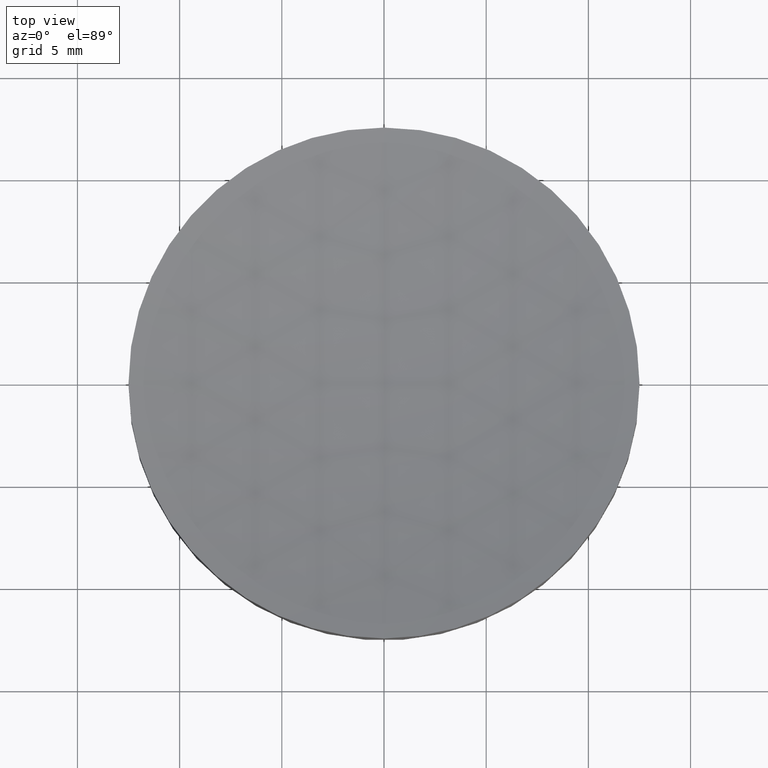
[diagram: clean part render]
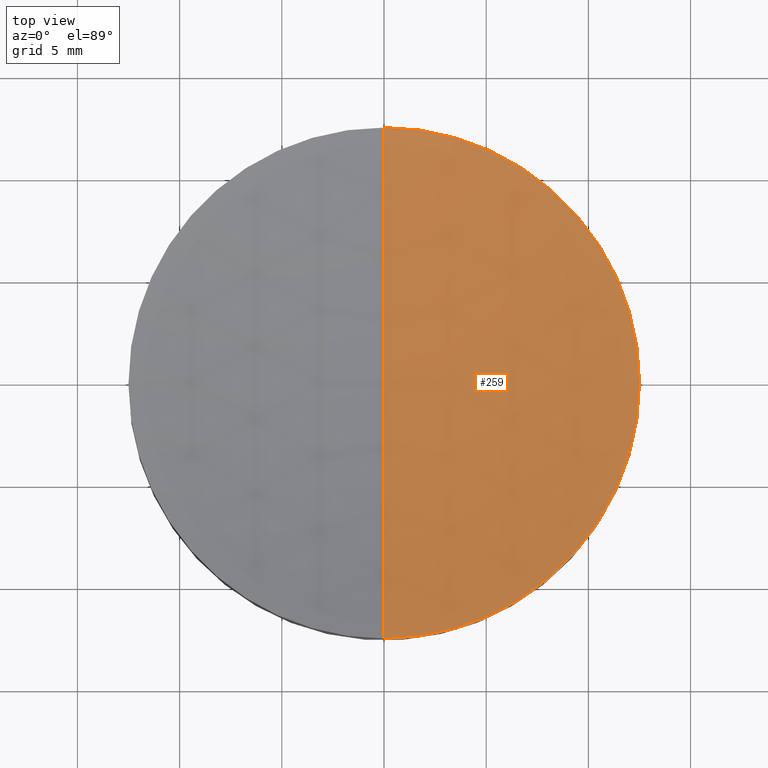
[diagram: same view with one face highlighted and labeled with its STEP entity id]
A machine part, top view. The second image highlights one B-rep face of the part: STEP entity #259.
In plain terms, the highlighted spherical surface has radius 51.5 mm.
Its self-contained STEP definition (entity closure, byte-faithful):
#1 = AXIS2_PLACEMENT_3D ( 'NONE', #5, #7, #8 ) ;
#4 = CIRCLE ( 'NONE', #1, 51.50000000000000700 ) ;
#5 = CARTESIAN_POINT ( 'NONE',  ( 0.0000000000000000000, 0.0000000000000000000, 52.72999199359360000 ) ) ;
#7 = DIRECTION ( 'NONE',  ( 1.000000000000000000, 0.0000000000000000000, 0.0000000000000000000 ) ) ;
#8 = DIRECTION ( 'NONE',  ( 0.0000000000000000000, 0.0000000000000000000, -1.000000000000000000 ) ) ;
#11 = CARTESIAN_POINT ( 'NONE',  ( 0.0000000000000000000, 3.153361361092621800E-015, 1.229991993593595900 ) ) ;
#12 = CARTESIAN_POINT ( 'NONE',  ( -1.530757942277970800E-015, -12.49999999999999300, 2.770008006406407200 ) ) ;
#13 = DIRECTION ( 'NONE',  ( -1.000000000000000000, 1.224606353822377300E-016, 0.0000000000000000000 ) ) ;
#15 = DIRECTION ( 'NONE',  ( -1.224606353822377300E-016, -1.000000000000000000, 0.0000000000000000000 ) ) ;
#37 = CARTESIAN_POINT ( 'NONE',  ( 0.0000000000000000000, 0.0000000000000000000, 52.72999199359360000 ) ) ;
#38 = AXIS2_PLACEMENT_3D ( 'NONE', #37, #13, #15 ) ;
#39 = CIRCLE ( 'NONE', #38, 51.50000000000000700 ) ;
#114 = FACE_OUTER_BOUND ( 'NONE', #219, .T. ) ;
#126 = DIRECTION ( 'NONE',  ( 0.0000000000000000000, 1.000000000000000000, 0.0000000000000000000 ) ) ;
#130 = AXIS2_PLACEMENT_3D ( 'NONE', #131, #138, #126 ) ;
#131 = CARTESIAN_POINT ( 'NONE',  ( 0.0000000000000000000, 0.0000000000000000000, 52.72999199359360000 ) ) ;
#135 = SPHERICAL_SURFACE ( 'NONE', #130, 51.50000000000000700 ) ;
#138 = DIRECTION ( 'NONE',  ( -1.000000000000000000, 0.0000000000000000000, 0.0000000000000000000 ) ) ;
#140 = CARTESIAN_POINT ( 'NONE',  ( 12.50000000000000000, 0.0000000000000000000, 2.770008006406406800 ) ) ;
#163 = DIRECTION ( 'NONE',  ( 1.000000000000000000, 0.0000000000000000000, 0.0000000000000000000 ) ) ;
#164 = DIRECTION ( 'NONE',  ( -0.0000000000000000000, -0.0000000000000000000, 1.000000000000000000 ) ) ;
#165 = AXIS2_PLACEMENT_3D ( 'NONE', #176, #164, #163 ) ;
#166 = CIRCLE ( 'NONE', #165, 12.50000000000000000 ) ;
#176 = CARTESIAN_POINT ( 'NONE',  ( 0.0000000000000000000, 0.0000000000000000000, 2.770008006406406800 ) ) ;
#187 = DIRECTION ( 'NONE',  ( 1.000000000000000000, 0.0000000000000000000, 0.0000000000000000000 ) ) ;
#188 = DIRECTION ( 'NONE',  ( -0.0000000000000000000, -0.0000000000000000000, 1.000000000000000000 ) ) ;
#189 = CARTESIAN_POINT ( 'NONE',  ( 0.0000000000000000000, 0.0000000000000000000, 2.770008006406406800 ) ) ;
#190 = AXIS2_PLACEMENT_3D ( 'NONE', #189, #188, #187 ) ;
#191 = CIRCLE ( 'NONE', #190, 12.50000000000000000 ) ;
#202 = CARTESIAN_POINT ( 'NONE',  ( 0.0000000000000000000, 12.49999999999999300, 2.770008006406407200 ) ) ;
#216 = VERTEX_POINT ( 'NONE', #12 ) ;
#217 = VERTEX_POINT ( 'NONE', #11 ) ;
#218 = ORIENTED_EDGE ( 'NONE', *, *, #220, .F. ) ;
#219 = EDGE_LOOP ( 'NONE', ( #218, #258, #248, #244 ) ) ;
#220 = EDGE_CURVE ( 'NONE', #217, #233, #4, .T. ) ;
#222 = EDGE_CURVE ( 'NONE', #217, #216, #39, .T. ) ;
#233 = VERTEX_POINT ( 'NONE', #202 ) ;
#236 = EDGE_CURVE ( 'NONE', #260, #233, #166, .T. ) ;
#244 = ORIENTED_EDGE ( 'NONE', *, *, #236, .T. ) ;
#246 = EDGE_CURVE ( 'NONE', #216, #260, #191, .T. ) ;
#248 = ORIENTED_EDGE ( 'NONE', *, *, #246, .T. ) ;
#258 = ORIENTED_EDGE ( 'NONE', *, *, #222, .T. ) ;
#259 = ADVANCED_FACE ( 'NONE', ( #114 ), #135, .F. ) ;
#260 = VERTEX_POINT ( 'NONE', #140 ) ;